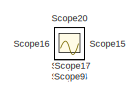
[diagram: root canvas - part 1/3, top left region]
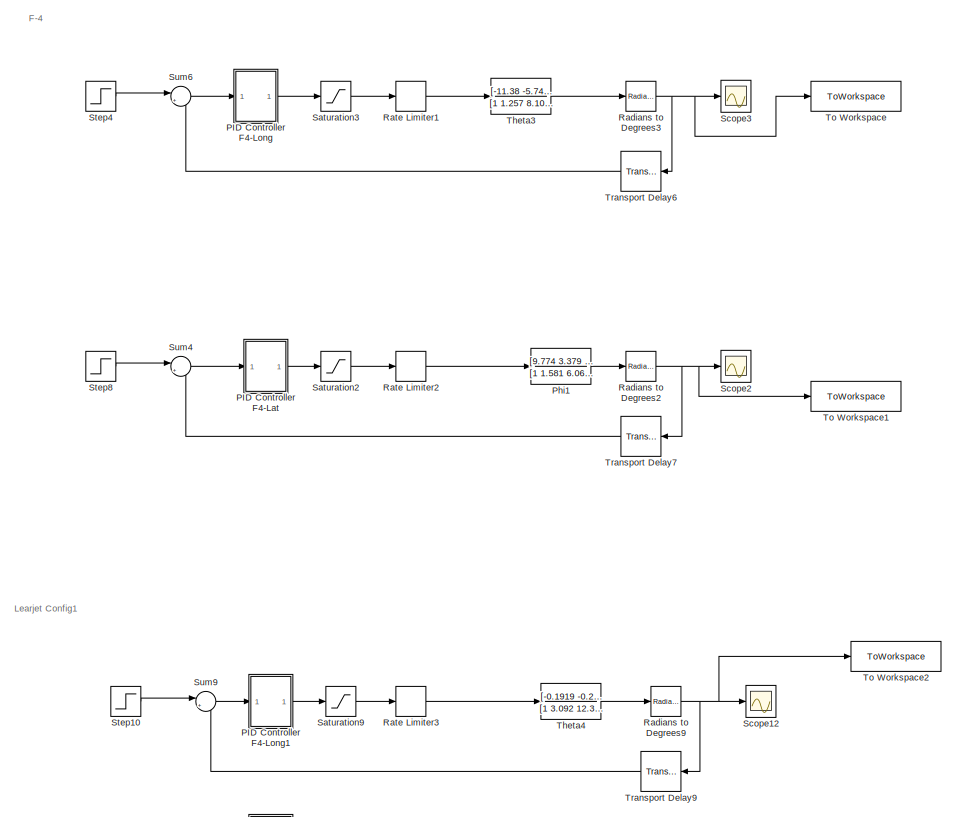
[diagram: root canvas - part 2/3, middle right region]
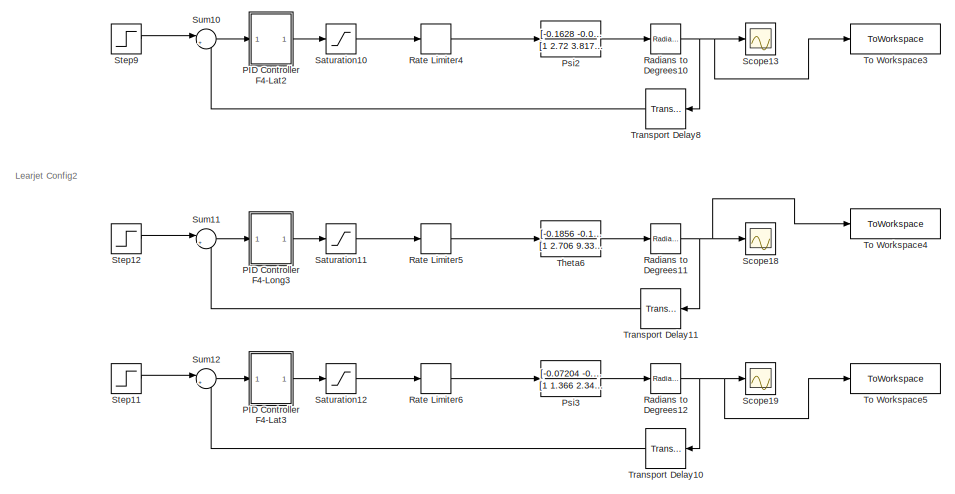
[diagram: root canvas - part 3/3, bottom right region]
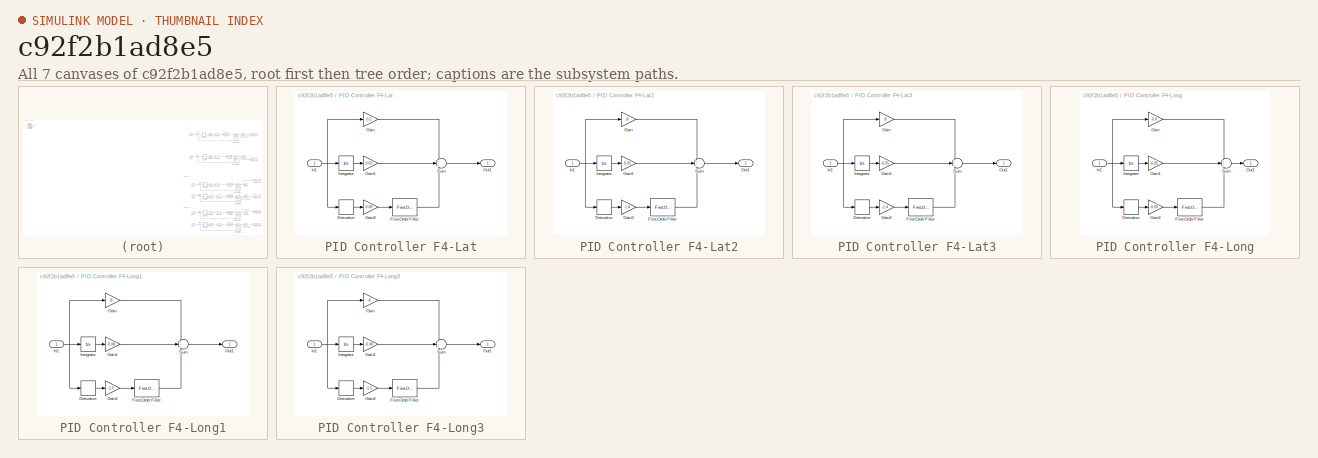
[diagram: thumbnail index - all 7 canvases of the model, root first then tree order]
MODEL slx_c92f2b1ad8e5
KIND model
CONFIG AbsTol = auto
CONFIG EnableMultiTasking = off
CONFIG FixedStep = auto
CONFIG MaxStep = auto
CONFIG MinStep = auto
CONFIG RelTol = 1e-3
CONFIG SampleTimeConstraint = Unconstrained
CONFIG SolverName = VariableStepAuto
CONFIG StartTime = 0.0
CONFIG StopTime = 50
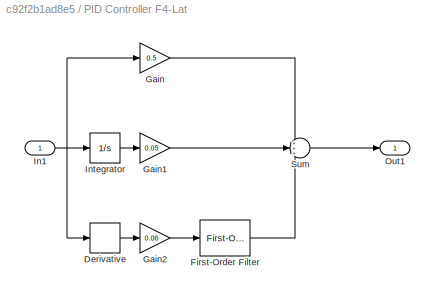
BLOCK [SubSystem] PID Controller F4-Lat
BLOCK [Derivative] PID Controller F4-Lat/Derivative
BLOCK [Reference] PID Controller F4-Lat/First-Order Filter  REF=spsFirstOrderFilterLib/First-Order
Filter
  LibrarySourceBlock = sps_lib/Control/Filters/First-Order\nFilter
  SourceBlock = spsFirstOrderFilterLib/First-Order\nFilter
  SourceType = First-Order Filter
BLOCK [Gain] PID Controller F4-Lat/Gain
  Gain = 0.5
BLOCK [Gain] PID Controller F4-Lat/Gain1
  Gain = 0.05
BLOCK [Gain] PID Controller F4-Lat/Gain2
  Gain = 0.06
BLOCK [Inport] PID Controller F4-Lat/In1
BLOCK [Integrator] PID Controller F4-Lat/Integrator
BLOCK [Outport] PID Controller F4-Lat/Out1
BLOCK [Sum] PID Controller F4-Lat/Sum
  Inputs = +++
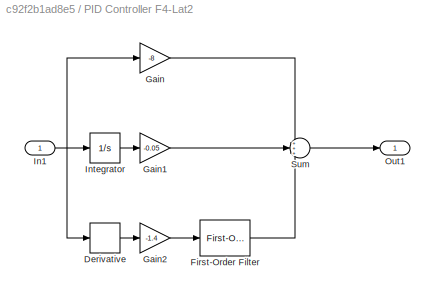
BLOCK [SubSystem] PID Controller F4-Lat2
BLOCK [Derivative] PID Controller F4-Lat2/Derivative
BLOCK [Reference] PID Controller F4-Lat2/First-Order Filter  REF=spsFirstOrderFilterLib/First-Order
Filter
  LibrarySourceBlock = sps_lib/Control/Filters/First-Order\nFilter
  SourceBlock = spsFirstOrderFilterLib/First-Order\nFilter
  SourceType = First-Order Filter
BLOCK [Gain] PID Controller F4-Lat2/Gain
  Gain = -8
BLOCK [Gain] PID Controller F4-Lat2/Gain1
  Gain = -0.05
BLOCK [Gain] PID Controller F4-Lat2/Gain2
  Gain = -1.4
BLOCK [Inport] PID Controller F4-Lat2/In1
BLOCK [Integrator] PID Controller F4-Lat2/Integrator
BLOCK [Outport] PID Controller F4-Lat2/Out1
BLOCK [Sum] PID Controller F4-Lat2/Sum
  Inputs = +++
BLOCK [SubSystem] PID Controller F4-Lat3
BLOCK [Derivative] PID Controller F4-Lat3/Derivative
BLOCK [Reference] PID Controller F4-Lat3/First-Order Filter  REF=spsFirstOrderFilterLib/First-Order
Filter
  SourceBlock = spsFirstOrderFilterLib/First-Order\nFilter
  SourceType = First-Order Filter
BLOCK [Gain] PID Controller F4-Lat3/Gain
  Gain = -8
BLOCK [Gain] PID Controller F4-Lat3/Gain1
  Gain = -0.05
BLOCK [Gain] PID Controller F4-Lat3/Gain2
  Gain = -1.4
BLOCK [Inport] PID Controller F4-Lat3/In1
BLOCK [Integrator] PID Controller F4-Lat3/Integrator
BLOCK [Outport] PID Controller F4-Lat3/Out1
BLOCK [Sum] PID Controller F4-Lat3/Sum
  Inputs = +++
BLOCK [SubSystem] PID Controller F4-Long
BLOCK [Derivative] PID Controller F4-Long/Derivative
BLOCK [Reference] PID Controller F4-Long/First-Order Filter  REF=spsFirstOrderFilterLib/First-Order
Filter
  LibrarySourceBlock = sps_lib/Control/Filters/First-Order\nFilter
  SourceBlock = spsFirstOrderFilterLib/First-Order\nFilter
  SourceType = First-Order Filter
BLOCK [Gain] PID Controller F4-Long/Gain
  Gain = -0.4
BLOCK [Gain] PID Controller F4-Long/Gain1
  Gain = -0.05
BLOCK [Gain] PID Controller F4-Long/Gain2
  Gain = -0.05
BLOCK [Inport] PID Controller F4-Long/In1
BLOCK [Integrator] PID Controller F4-Long/Integrator
BLOCK [Outport] PID Controller F4-Long/Out1
BLOCK [Sum] PID Controller F4-Long/Sum
  Inputs = +++
BLOCK [SubSystem] PID Controller F4-Long1
BLOCK [Derivative] PID Controller F4-Long1/Derivative
BLOCK [Reference] PID Controller F4-Long1/First-Order Filter  REF=spsFirstOrderFilterLib/First-Order
Filter
  LibrarySourceBlock = sps_lib/Control/Filters/First-Order\nFilter
  SourceBlock = spsFirstOrderFilterLib/First-Order\nFilter
  SourceType = First-Order Filter
BLOCK [Gain] PID Controller F4-Long1/Gain
  Gain = -8
BLOCK [Gain] PID Controller F4-Long1/Gain1
  Gain = -0.08
BLOCK [Gain] PID Controller F4-Long1/Gain2
  Gain = -1.5
BLOCK [Inport] PID Controller F4-Long1/In1
BLOCK [Integrator] PID Controller F4-Long1/Integrator
BLOCK [Outport] PID Controller F4-Long1/Out1
BLOCK [Sum] PID Controller F4-Long1/Sum
  Inputs = +++
BLOCK [SubSystem] PID Controller F4-Long3
BLOCK [Derivative] PID Controller F4-Long3/Derivative
BLOCK [Reference] PID Controller F4-Long3/First-Order Filter  REF=spsFirstOrderFilterLib/First-Order
Filter
  SourceBlock = spsFirstOrderFilterLib/First-Order\nFilter
  SourceType = First-Order Filter
BLOCK [Gain] PID Controller F4-Long3/Gain
  Gain = -8
BLOCK [Gain] PID Controller F4-Long3/Gain1
  Gain = -0.08
BLOCK [Gain] PID Controller F4-Long3/Gain2
  Gain = -1.5
BLOCK [Inport] PID Controller F4-Long3/In1
BLOCK [Integrator] PID Controller F4-Long3/Integrator
BLOCK [Outport] PID Controller F4-Long3/Out1
BLOCK [Sum] PID Controller F4-Long3/Sum
  Inputs = +++
BLOCK [TransferFcn] Phi1
  Denominator = [1 1.581 6.068 7.758 0.1007]
  Numerator = [9.774 3.379 50.2]
BLOCK [TransferFcn] Psi2
  Denominator = [1 2.72 3.817 7.646 0.002118]
  Numerator = [-0.1628 -0.08063 -0.4614]
BLOCK [TransferFcn] Psi3
  Denominator = [1 1.366 2.345 2.45 -0.04924]
  Numerator = [-0.07204 -0.02628 0.1395]
BLOCK [Reference] Radians to Degrees10  REF=simulink_extras/Transformations/Radians
to Degrees
  SourceBlock = simulink_extras/Transformations/Radians\nto Degrees
  SourceType = RadiansToDegrees
BLOCK [Reference] Radians to Degrees11  REF=simulink_extras/Transformations/Radians
to Degrees
  SourceBlock = simulink_extras/Transformations/Radians\nto Degrees
  SourceType = RadiansToDegrees
BLOCK [Reference] Radians to Degrees12  REF=simulink_extras/Transformations/Radians
to Degrees
  SourceBlock = simulink_extras/Transformations/Radians\nto Degrees
  SourceType = RadiansToDegrees
BLOCK [Reference] Radians to Degrees2  REF=simulink_extras/Transformations/Radians
to Degrees
  SourceBlock = simulink_extras/Transformations/Radians\nto Degrees
  SourceType = RadiansToDegrees
BLOCK [Reference] Radians to Degrees3  REF=simulink_extras/Transformations/Radians
to Degrees
  SourceBlock = simulink_extras/Transformations/Radians\nto Degrees
  SourceType = RadiansToDegrees
BLOCK [Reference] Radians to Degrees9  REF=simulink_extras/Transformations/Radians
to Degrees
  SourceBlock = simulink_extras/Transformations/Radians\nto Degrees
  SourceType = RadiansToDegrees
BLOCK [RateLimiter] Rate Limiter1
  FallingSlewLimit = -60
  RisingSlewLimit = 60
  SampleTimeMode = inherited
BLOCK [RateLimiter] Rate Limiter2
  FallingSlewLimit = -60
  RisingSlewLimit = 60
  SampleTimeMode = inherited
BLOCK [RateLimiter] Rate Limiter3
  FallingSlewLimit = -60
  RisingSlewLimit = 60
  SampleTimeMode = inherited
BLOCK [RateLimiter] Rate Limiter4
  FallingSlewLimit = -60
  RisingSlewLimit = 60
  SampleTimeMode = inherited
BLOCK [RateLimiter] Rate Limiter5
  FallingSlewLimit = -60
  RisingSlewLimit = 60
  SampleTimeMode = inherited
BLOCK [RateLimiter] Rate Limiter6
  FallingSlewLimit = -60
  RisingSlewLimit = 60
  SampleTimeMode = inherited
BLOCK [Saturate] Saturation10
  LowerLimit = -15
  UpperLimit = 15
BLOCK [Saturate] Saturation11
  LowerLimit = -15
  UpperLimit = 15
BLOCK [Saturate] Saturation12
  LowerLimit = -15
  UpperLimit = 15
BLOCK [Saturate] Saturation2
  LowerLimit = -15
  UpperLimit = 15
BLOCK [Saturate] Saturation3
  LowerLimit = -15
  UpperLimit = 15
BLOCK [Saturate] Saturation9
  LowerLimit = -15
  UpperLimit = 15
BLOCK [Scope] Scope10
  Floating = off
  IOType = viewer
  NumInputPorts = 1
  ScopeSpecificationString = Simulink.scopes.TimeScopeBlockCfg('CurrentConfiguration', extmgr.ConfigurationSet(extmgr.Configuration('Core','General UI',true),extmgr.Configuration('Core','Source UI',true),extmgr.Configuration('Sources','WiredSimulink',true,'DataLoggingVariableName','ScopeData2'),extmgr.Configuration('Visuals','Time Domain',true,'SerializedDisplays',{struct('MinYLimReal','-2.29931','MaxYLimReal','16.92215','YLa...<+1517ch>
BLOCK [Scope] Scope11
  Floating = off
  IOType = viewer
  NumInputPorts = 1
  ScopeSpecificationString = Simulink.scopes.TimeScopeBlockCfg('CurrentConfiguration', extmgr.ConfigurationSet(extmgr.Configuration('Core','General UI',true),extmgr.Configuration('Core','Source UI',true),extmgr.Configuration('Sources','WiredSimulink',true,'DataLoggingVariableName','ScopeData1'),extmgr.Configuration('Visuals','Time Domain',true,'SerializedDisplays',{struct('MinYLimReal','-0.1639','MaxYLimReal','0.70527','YLabe...<+1486ch>
BLOCK [Scope] Scope12
  Floating = off
  NumInputPorts = 1
  ScopeSpecificationString = Simulink.scopes.TimeScopeBlockCfg('CurrentConfiguration', extmgr.ConfigurationSet(extmgr.Configuration('Core','General UI',true),extmgr.Configuration('Core','Source UI',true),extmgr.Configuration('Sources','WiredSimulink',true,'DataLoggingVariableName','ScopeData1'),extmgr.Configuration('Visuals','Time Domain',true,'SerializedDisplays',{struct('MinYLimReal','-0.12504','MaxYLimReal','1.12534','YLab...<+1509ch>
BLOCK [Scope] Scope13
  Floating = off
  NumInputPorts = 1
  ScopeSpecificationString = Simulink.scopes.TimeScopeBlockCfg('CurrentConfiguration', extmgr.ConfigurationSet(extmgr.Configuration('Core','General UI',true),extmgr.Configuration('Core','Source UI',true),extmgr.Configuration('Sources','WiredSimulink',true,'DataLoggingVariableName','ScopeData2'),extmgr.Configuration('Visuals','Time Domain',true,'SerializedDisplays',{struct('MinYLimReal','-0.12583','MaxYLimReal','1.13247','YLab...<+1434ch>
BLOCK [Scope] Scope14
  Floating = off
  IOType = viewer
  NumInputPorts = 1
  ScopeSpecificationString = Simulink.scopes.TimeScopeBlockCfg('CurrentConfiguration', extmgr.ConfigurationSet(extmgr.Configuration('Core','General UI',true),extmgr.Configuration('Core','Source UI',true),extmgr.Configuration('Sources','WiredSimulink',true,'DataLoggingVariableName','ScopeData3'),extmgr.Configuration('Visuals','Time Domain',true,'SerializedDisplays',{struct('MinYLimReal','-1.38233','MaxYLimReal','0.16908','YLab...<+1495ch>
BLOCK [Scope] Scope15
  Floating = off
  IOType = viewer
  NumInputPorts = 1
  ScopeSpecificationString = Simulink.scopes.TimeScopeBlockCfg('CurrentConfiguration', extmgr.ConfigurationSet(extmgr.Configuration('Core','General UI',true),extmgr.Configuration('Core','Source UI',true),extmgr.Configuration('Sources','WiredSimulink',true,'DataLoggingVariableName','ScopeData4'),extmgr.Configuration('Visuals','Time Domain',true,'SerializedDisplays',{struct('MinYLimReal','-0.80798','MaxYLimReal','0.16244','YLab...<+1494ch>
BLOCK [Scope] Scope16
  Floating = off
  IOType = viewer
  NumInputPorts = 1
  ScopeSpecificationString = Simulink.scopes.TimeScopeBlockCfg('CurrentConfiguration', extmgr.ConfigurationSet(extmgr.Configuration('Core','General UI',true),extmgr.Configuration('Core','Source UI',true),extmgr.Configuration('Sources','WiredSimulink',true,'DataLoggingVariableName','ScopeData1'),extmgr.Configuration('Visuals','Time Domain',true,'SerializedDisplays',{struct('MinYLimReal','-0.3339','MaxYLimReal','0.0559','YLabel...<+1509ch>
BLOCK [Scope] Scope17
  Floating = off
  IOType = viewer
  NumInputPorts = 1
  ScopeSpecificationString = Simulink.scopes.TimeScopeBlockCfg('CurrentConfiguration', extmgr.ConfigurationSet(extmgr.Configuration('Core','General UI',true),extmgr.Configuration('Core','Source UI',true),extmgr.Configuration('Sources','WiredSimulink',true,'DataLoggingVariableName','ScopeData2'),extmgr.Configuration('Visuals','Time Domain',true,'SerializedDisplays',{struct('MinYLimReal','-0.11599','MaxYLimReal','0.07315','YLab...<+1520ch>
BLOCK [Scope] Scope18
  Floating = off
  NumInputPorts = 1
  ScopeSpecificationString = Simulink.scopes.TimeScopeBlockCfg('CurrentConfiguration', extmgr.ConfigurationSet(extmgr.Configuration('Core','General UI',true),extmgr.Configuration('Core','Source UI',true),extmgr.Configuration('Sources','WiredSimulink',true,'DataLoggingVariableName','ScopeData1'),extmgr.Configuration('Visuals','Time Domain',true,'SerializedDisplays',{struct('MinYLimReal','-0.12457','MaxYLimReal','1.12117','YLab...<+1510ch>
BLOCK [Scope] Scope19
  Floating = off
  NumInputPorts = 1
  ScopeSpecificationString = Simulink.scopes.TimeScopeBlockCfg('CurrentConfiguration', extmgr.ConfigurationSet(extmgr.Configuration('Core','General UI',true),extmgr.Configuration('Core','Source UI',true),extmgr.Configuration('Sources','WiredSimulink',true,'DataLoggingVariableName','ScopeData2'),extmgr.Configuration('Visuals','Time Domain',true,'SerializedDisplays',{struct('MinYLimReal','-4010.93146','MaxYLimReal','446.73886',...<+1602ch>
BLOCK [Scope] Scope2
  Floating = off
  NumInputPorts = 1
  ScopeSpecificationString = Simulink.scopes.TimeScopeBlockCfg('CurrentConfiguration', extmgr.ConfigurationSet(extmgr.Configuration('Core','General UI',true),extmgr.Configuration('Core','Source UI',true),extmgr.Configuration('Sources','WiredSimulink',true,'DataLoggingVariableName','ScopeData2'),extmgr.Configuration('Visuals','Time Domain',true,'SerializedDisplays',{struct('MinYLimReal','-0.13629','MaxYLimReal','1.2266','YLabe...<+1450ch>
BLOCK [Scope] Scope20
  Floating = off
  IOType = viewer
  NumInputPorts = 1
  ScopeSpecificationString = Simulink.scopes.TimeScopeBlockCfg('CurrentConfiguration', extmgr.ConfigurationSet(extmgr.Configuration('Core','General UI',true),extmgr.Configuration('Core','Source UI',true),extmgr.Configuration('Sources','WiredSimulink',true,'DataLoggingVariableName','ScopeData3'),extmgr.Configuration('Visuals','Time Domain',true,'SerializedDisplays',{struct('MinYLimReal','-0.40021','MaxYLimReal','0.10746','YLab...<+1402ch>
BLOCK [Scope] Scope3
  Floating = off
  NumInputPorts = 1
  ScopeSpecificationString = Simulink.scopes.TimeScopeBlockCfg('CurrentConfiguration', extmgr.ConfigurationSet(extmgr.Configuration('Core','General UI',true),extmgr.Configuration('Core','Source UI',true),extmgr.Configuration('Sources','WiredSimulink',true,'DataLoggingVariableName','ScopeData3'),extmgr.Configuration('Visuals','Time Domain',true,'SerializedDisplays',{struct('MinYLimReal','-0.14476','MaxYLimReal','1.3028','YLabe...<+1538ch>
BLOCK [Scope] Scope9
  Floating = off
  IOType = viewer
  NumInputPorts = 1
  ScopeSpecificationString = Simulink.scopes.TimeScopeBlockCfg('CurrentConfiguration', extmgr.ConfigurationSet(extmgr.Configuration('Core','General UI',true),extmgr.Configuration('Core','Source UI',true),extmgr.Configuration('Sources','WiredSimulink',true,'DataLoggingVariableName','ScopeData1'),extmgr.Configuration('Visuals','Time Domain',true,'SerializedDisplays',{struct('MinYLimReal','-16.90865','MaxYLimReal','2.17782','YLa...<+1492ch>
BLOCK [Step] Step10
  SampleTime = 0
BLOCK [Step] Step11
  SampleTime = 0
BLOCK [Step] Step12
  SampleTime = 0
BLOCK [Step] Step4
  SampleTime = 0
BLOCK [Step] Step8
  SampleTime = 0
BLOCK [Step] Step9
  SampleTime = 0
BLOCK [Sum] Sum10
  Inputs = |+-
BLOCK [Sum] Sum11
  Inputs = |+-
BLOCK [Sum] Sum12
  Inputs = |+-
BLOCK [Sum] Sum4
  Inputs = |+-
BLOCK [Sum] Sum6
  Inputs = |+-
BLOCK [Sum] Sum9
  Inputs = |+-
BLOCK [TransferFcn] Theta3
  Denominator = [1 1.257 8.104 -0.009997 -0.01242]
  Numerator = [-11.38 -5.747 -0.06639]
BLOCK [TransferFcn] Theta4
  Denominator = [1 3.092 12.33 0.1023 0.1033]
  Numerator = [-0.1919 -0.2474 -0.00406]
BLOCK [TransferFcn] Theta6
  Denominator = [1 2.706 9.332 0.072151 0.08193]
  Numerator = [-0.1856 -0.1962 0.003189]
BLOCK [ToWorkspace] To Workspace
  FixptAsFi = on
  MaxDataPoints = inf
  SampleTime = -1
  Save2DSignal = 2-D array (concatenate along first dimension)
  SaveFormat = Structure With Time
  VariableName = F4_pitch
BLOCK [ToWorkspace] To Workspace1
  FixptAsFi = on
  MaxDataPoints = inf
  SampleTime = -1
  Save2DSignal = 2-D array (concatenate along first dimension)
  SaveFormat = Structure With Time
  VariableName = F4_roll
BLOCK [ToWorkspace] To Workspace2
  FixptAsFi = on
  MaxDataPoints = inf
  SampleTime = -1
  Save2DSignal = 2-D array (concatenate along first dimension)
  SaveFormat = Structure With Time
  VariableName = L251_pitch
BLOCK [ToWorkspace] To Workspace3
  FixptAsFi = on
  MaxDataPoints = inf
  SampleTime = -1
  Save2DSignal = 2-D array (concatenate along first dimension)
  SaveFormat = Structure With Time
  VariableName = L251_roll
BLOCK [ToWorkspace] To Workspace4
  FixptAsFi = on
  MaxDataPoints = inf
  SampleTime = -1
  Save2DSignal = 2-D array (concatenate along first dimension)
  SaveFormat = Structure With Time
  VariableName = L252_pitch
BLOCK [ToWorkspace] To Workspace5
  FixptAsFi = on
  MaxDataPoints = inf
  SampleTime = -1
  Save2DSignal = 2-D array (concatenate along first dimension)
  SaveFormat = Structure With Time
  VariableName = L252_roll
BLOCK [TransportDelay] Transport Delay10
  DelayTime = 0.005
BLOCK [TransportDelay] Transport Delay11
  DelayTime = 0.005
BLOCK [TransportDelay] Transport Delay6
  DelayTime = 0.005
BLOCK [TransportDelay] Transport Delay7
  DelayTime = 0.005
BLOCK [TransportDelay] Transport Delay8
  DelayTime = 0.005
BLOCK [TransportDelay] Transport Delay9
  DelayTime = 0.005
ANNOTATION (root): F-4
ANNOTATION (root): Learjet Config1
ANNOTATION (root): Learjet Config2
LINE PID Controller F4-Lat/Derivative:1 -> PID Controller F4-Lat/Gain2:1
LINE PID Controller F4-Lat/First-Order Filter:1 -> PID Controller F4-Lat/Sum:3
LINE PID Controller F4-Lat/Gain1:1 -> PID Controller F4-Lat/Sum:2
LINE PID Controller F4-Lat/Gain2:1 -> PID Controller F4-Lat/First-Order Filter:1
LINE PID Controller F4-Lat/Gain:1 -> PID Controller F4-Lat/Sum:1
NET PID Controller F4-Lat/In1:1 -> PID Controller F4-Lat/Derivative:1, PID Controller F4-Lat/Gain:1, PID Controller F4-Lat/Integrator:1
LINE PID Controller F4-Lat/Integrator:1 -> PID Controller F4-Lat/Gain1:1
LINE PID Controller F4-Lat/Sum:1 -> PID Controller F4-Lat/Out1:1
LINE PID Controller F4-Lat2/Derivative:1 -> PID Controller F4-Lat2/Gain2:1
LINE PID Controller F4-Lat2/First-Order Filter:1 -> PID Controller F4-Lat2/Sum:3
LINE PID Controller F4-Lat2/Gain1:1 -> PID Controller F4-Lat2/Sum:2
LINE PID Controller F4-Lat2/Gain2:1 -> PID Controller F4-Lat2/First-Order Filter:1
LINE PID Controller F4-Lat2/Gain:1 -> PID Controller F4-Lat2/Sum:1
NET PID Controller F4-Lat2/In1:1 -> PID Controller F4-Lat2/Derivative:1, PID Controller F4-Lat2/Gain:1, PID Controller F4-Lat2/Integrator:1
LINE PID Controller F4-Lat2/Integrator:1 -> PID Controller F4-Lat2/Gain1:1
LINE PID Controller F4-Lat2/Sum:1 -> PID Controller F4-Lat2/Out1:1
LINE PID Controller F4-Lat2:1 -> Saturation10:1
LINE PID Controller F4-Lat3/Derivative:1 -> PID Controller F4-Lat3/Gain2:1
LINE PID Controller F4-Lat3/First-Order Filter:1 -> PID Controller F4-Lat3/Sum:3
LINE PID Controller F4-Lat3/Gain1:1 -> PID Controller F4-Lat3/Sum:2
LINE PID Controller F4-Lat3/Gain2:1 -> PID Controller F4-Lat3/First-Order Filter:1
LINE PID Controller F4-Lat3/Gain:1 -> PID Controller F4-Lat3/Sum:1
NET PID Controller F4-Lat3/In1:1 -> PID Controller F4-Lat3/Derivative:1, PID Controller F4-Lat3/Gain:1, PID Controller F4-Lat3/Integrator:1
LINE PID Controller F4-Lat3/Integrator:1 -> PID Controller F4-Lat3/Gain1:1
LINE PID Controller F4-Lat3/Sum:1 -> PID Controller F4-Lat3/Out1:1
LINE PID Controller F4-Lat3:1 -> Saturation12:1
LINE PID Controller F4-Lat:1 -> Saturation2:1
LINE PID Controller F4-Long/Derivative:1 -> PID Controller F4-Long/Gain2:1
LINE PID Controller F4-Long/First-Order Filter:1 -> PID Controller F4-Long/Sum:3
LINE PID Controller F4-Long/Gain1:1 -> PID Controller F4-Long/Sum:2
LINE PID Controller F4-Long/Gain2:1 -> PID Controller F4-Long/First-Order Filter:1
LINE PID Controller F4-Long/Gain:1 -> PID Controller F4-Long/Sum:1
NET PID Controller F4-Long/In1:1 -> PID Controller F4-Long/Derivative:1, PID Controller F4-Long/Gain:1, PID Controller F4-Long/Integrator:1
LINE PID Controller F4-Long/Integrator:1 -> PID Controller F4-Long/Gain1:1
LINE PID Controller F4-Long/Sum:1 -> PID Controller F4-Long/Out1:1
LINE PID Controller F4-Long1/Derivative:1 -> PID Controller F4-Long1/Gain2:1
LINE PID Controller F4-Long1/First-Order Filter:1 -> PID Controller F4-Long1/Sum:3
LINE PID Controller F4-Long1/Gain1:1 -> PID Controller F4-Long1/Sum:2
LINE PID Controller F4-Long1/Gain2:1 -> PID Controller F4-Long1/First-Order Filter:1
LINE PID Controller F4-Long1/Gain:1 -> PID Controller F4-Long1/Sum:1
NET PID Controller F4-Long1/In1:1 -> PID Controller F4-Long1/Derivative:1, PID Controller F4-Long1/Gain:1, PID Controller F4-Long1/Integrator:1
LINE PID Controller F4-Long1/Integrator:1 -> PID Controller F4-Long1/Gain1:1
LINE PID Controller F4-Long1/Sum:1 -> PID Controller F4-Long1/Out1:1
LINE PID Controller F4-Long1:1 -> Saturation9:1
LINE PID Controller F4-Long3/Derivative:1 -> PID Controller F4-Long3/Gain2:1
LINE PID Controller F4-Long3/First-Order Filter:1 -> PID Controller F4-Long3/Sum:3
LINE PID Controller F4-Long3/Gain1:1 -> PID Controller F4-Long3/Sum:2
LINE PID Controller F4-Long3/Gain2:1 -> PID Controller F4-Long3/First-Order Filter:1
LINE PID Controller F4-Long3/Gain:1 -> PID Controller F4-Long3/Sum:1
NET PID Controller F4-Long3/In1:1 -> PID Controller F4-Long3/Derivative:1, PID Controller F4-Long3/Gain:1, PID Controller F4-Long3/Integrator:1
LINE PID Controller F4-Long3/Integrator:1 -> PID Controller F4-Long3/Gain1:1
LINE PID Controller F4-Long3/Sum:1 -> PID Controller F4-Long3/Out1:1
LINE PID Controller F4-Long3:1 -> Saturation11:1
LINE PID Controller F4-Long:1 -> Saturation3:1
LINE Phi1:1 -> Radians to Degrees2:1
LINE Psi2:1 -> Radians to Degrees10:1
LINE Psi3:1 -> Radians to Degrees12:1
NET Radians to Degrees10:1 -> Scope13:1, To Workspace3:1, Transport Delay8:1
NET Radians to Degrees11:1 -> Scope18:1, To Workspace4:1, Transport Delay11:1
NET Radians to Degrees12:1 -> Scope19:1, To Workspace5:1, Transport Delay10:1
NET Radians to Degrees2:1 -> Scope2:1, To Workspace1:1, Transport Delay7:1
NET Radians to Degrees3:1 -> Scope3:1, To Workspace:1, Transport Delay6:1
NET Radians to Degrees9:1 -> Scope12:1, To Workspace2:1, Transport Delay9:1
LINE Rate Limiter1:1 -> Theta3:1
LINE Rate Limiter2:1 -> Phi1:1
LINE Rate Limiter3:1 -> Theta4:1
LINE Rate Limiter4:1 -> Psi2:1
LINE Rate Limiter5:1 -> Theta6:1
LINE Rate Limiter6:1 -> Psi3:1
LINE Saturation10:1 -> Rate Limiter4:1
LINE Saturation11:1 -> Rate Limiter5:1
LINE Saturation12:1 -> Rate Limiter6:1
LINE Saturation2:1 -> Rate Limiter2:1
LINE Saturation3:1 -> Rate Limiter1:1
LINE Saturation9:1 -> Rate Limiter3:1
LINE Step10:1 -> Sum9:1
LINE Step11:1 -> Sum12:1
LINE Step12:1 -> Sum11:1
LINE Step4:1 -> Sum6:1
LINE Step8:1 -> Sum4:1
LINE Step9:1 -> Sum10:1
LINE Sum10:1 -> PID Controller F4-Lat2:1
LINE Sum11:1 -> PID Controller F4-Long3:1
LINE Sum12:1 -> PID Controller F4-Lat3:1
LINE Sum4:1 -> PID Controller F4-Lat:1
LINE Sum6:1 -> PID Controller F4-Long:1
LINE Sum9:1 -> PID Controller F4-Long1:1
LINE Theta3:1 -> Radians to Degrees3:1
LINE Theta4:1 -> Radians to Degrees9:1
LINE Theta6:1 -> Radians to Degrees11:1
LINE Transport Delay10:1 -> Sum12:2
LINE Transport Delay11:1 -> Sum11:2
LINE Transport Delay6:1 -> Sum6:2
LINE Transport Delay7:1 -> Sum4:2
LINE Transport Delay8:1 -> Sum10:2
LINE Transport Delay9:1 -> Sum9:2
note: NET lines group one-source signal fan-out (src -> all destinations, sorted); 1:1 wires keep LINE
